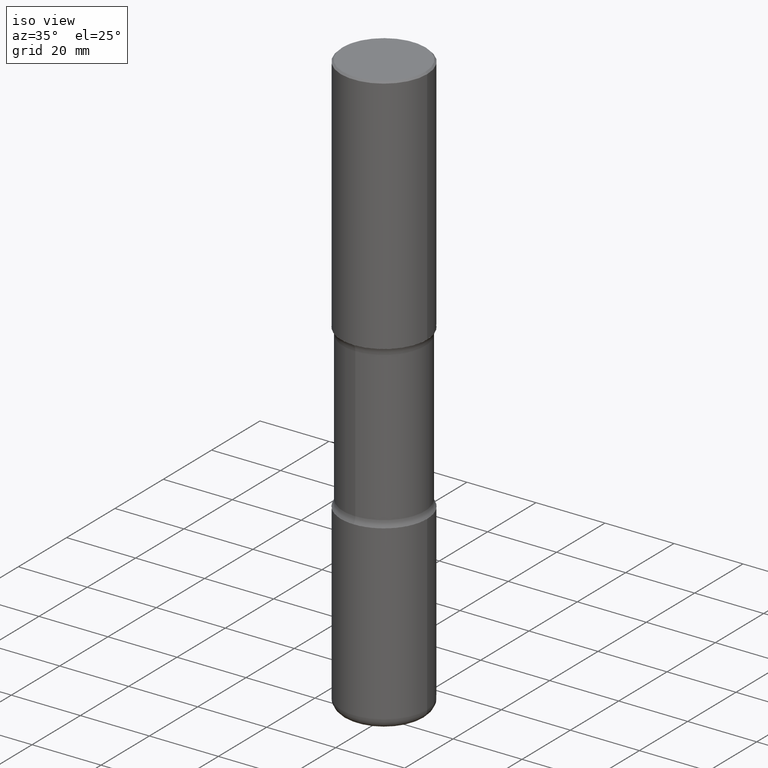
[diagram: clean part render]
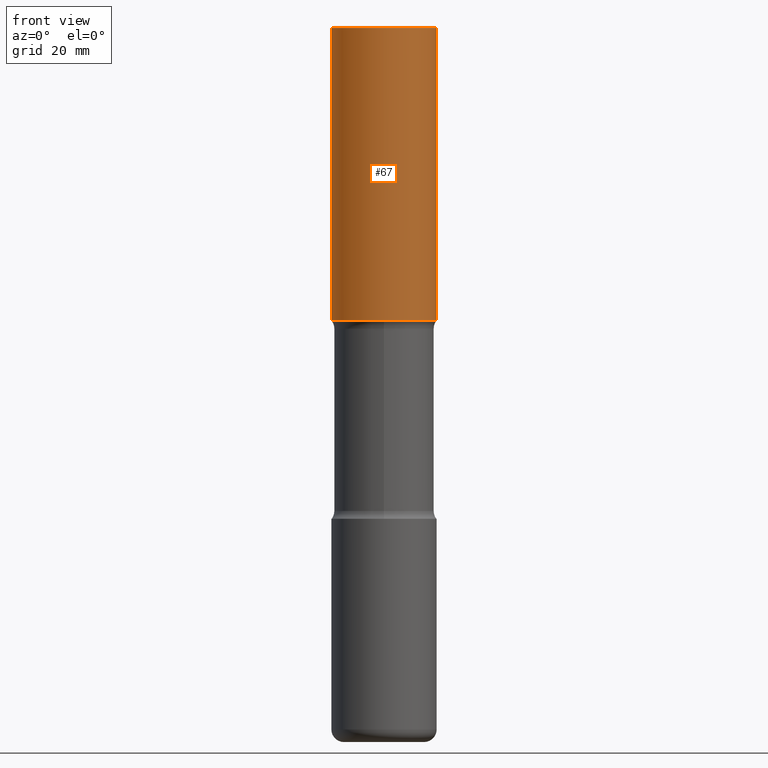
[diagram: tour spotlight — one face highlighted and labeled with its STEP entity id]
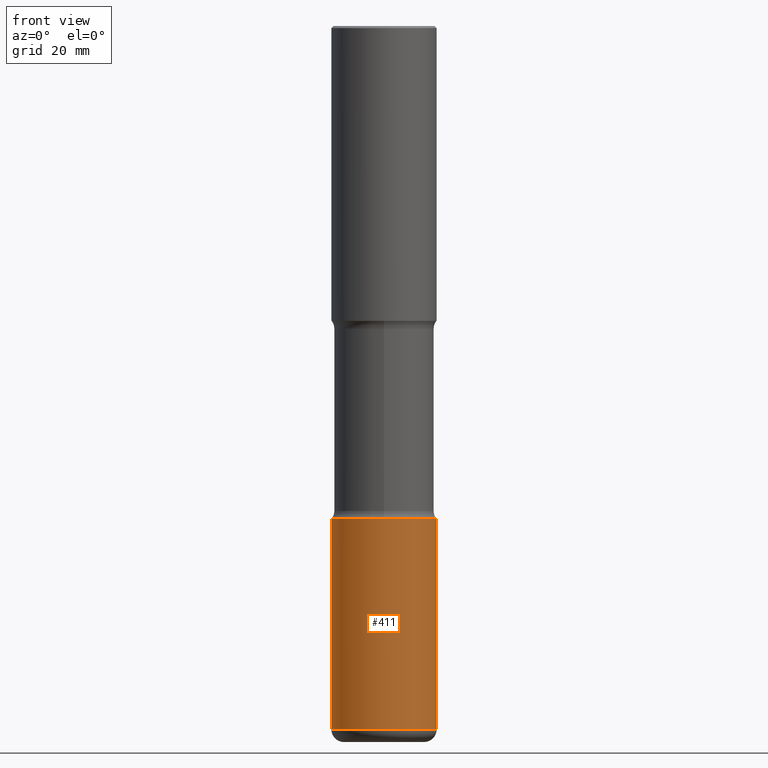
[diagram: tour spotlight — one face highlighted and labeled with its STEP entity id]
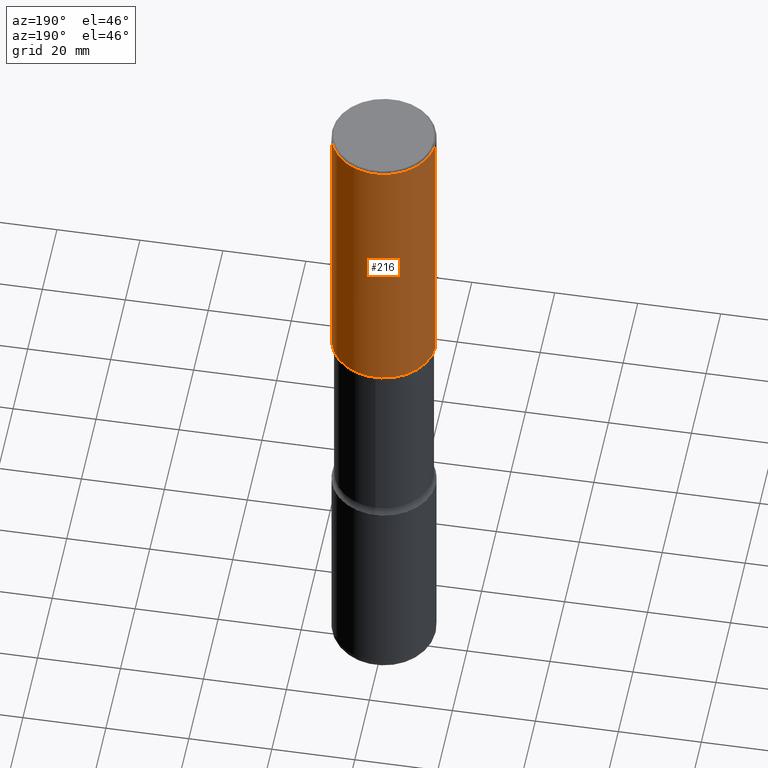
[diagram: tour spotlight — one face highlighted and labeled with its STEP entity id]
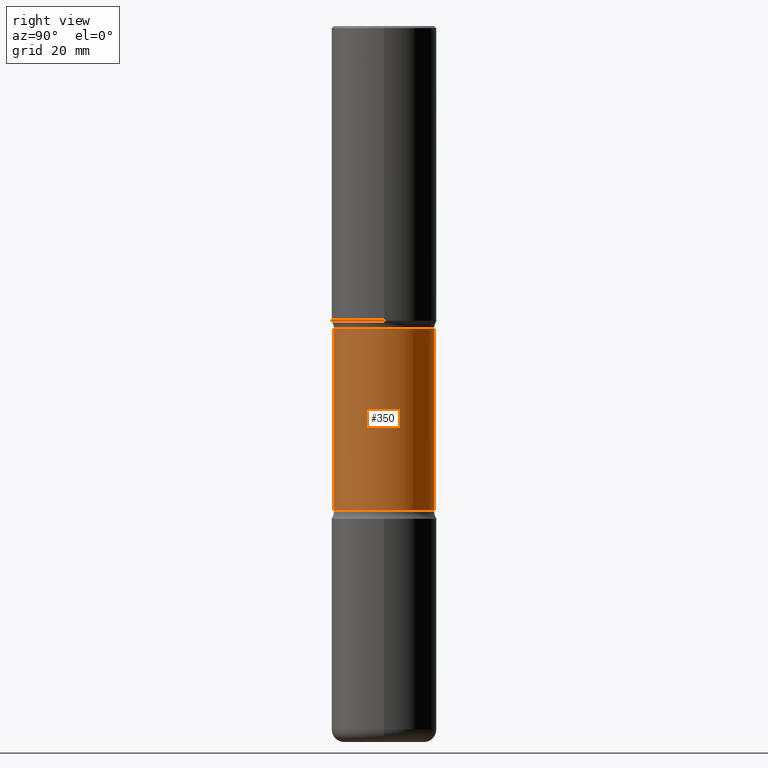
[diagram: tour spotlight — one face highlighted and labeled with its STEP entity id]
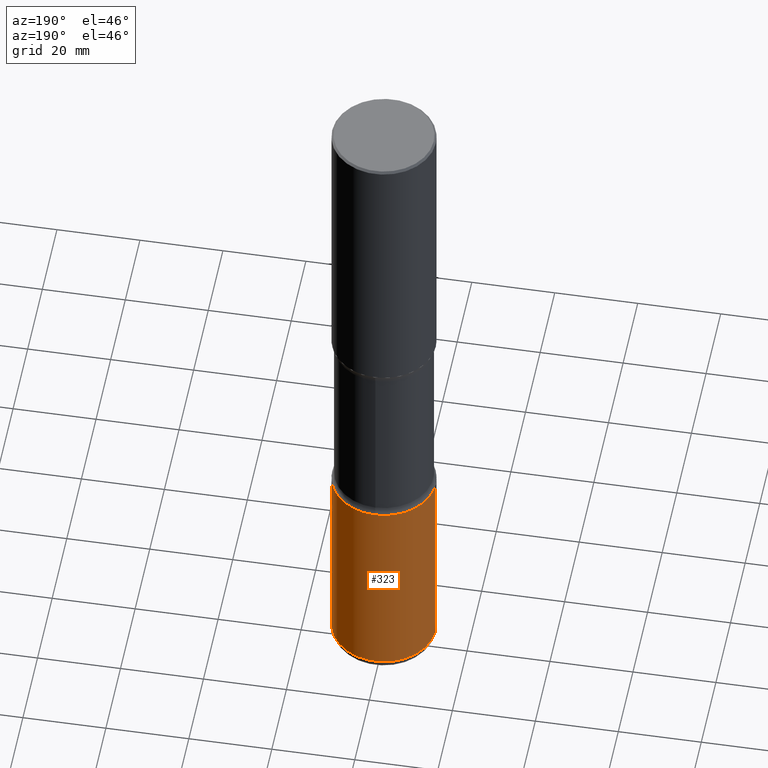
[diagram: tour spotlight — one face highlighted and labeled with its STEP entity id]
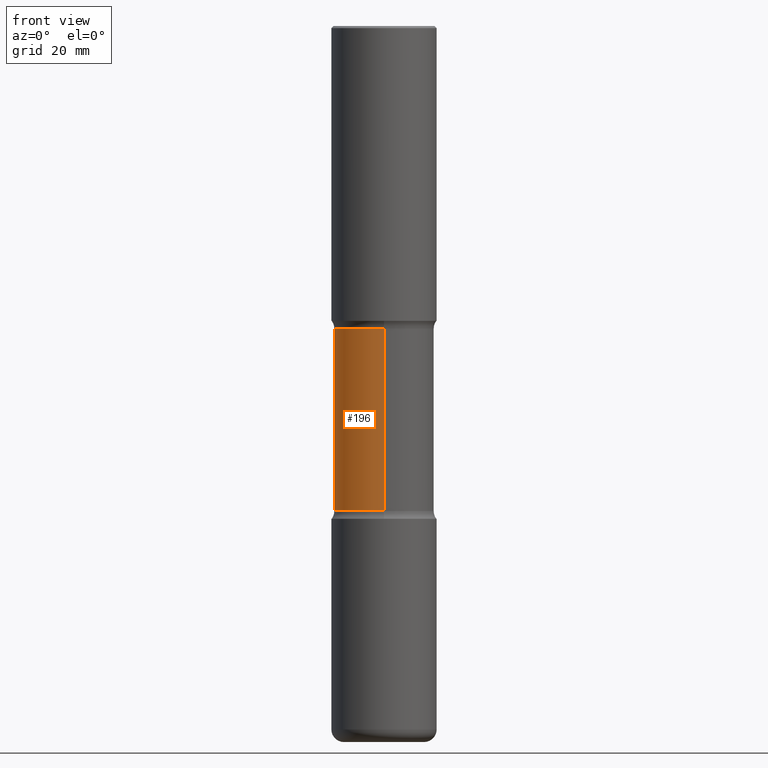
[diagram: tour spotlight — one face highlighted and labeled with its STEP entity id]
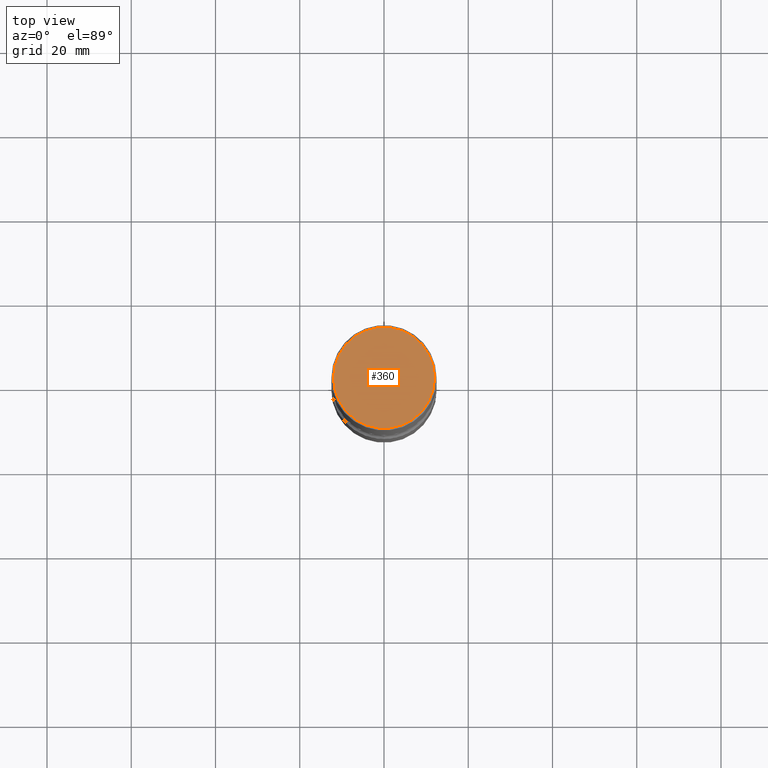
[diagram: tour spotlight — one face highlighted and labeled with its STEP entity id]
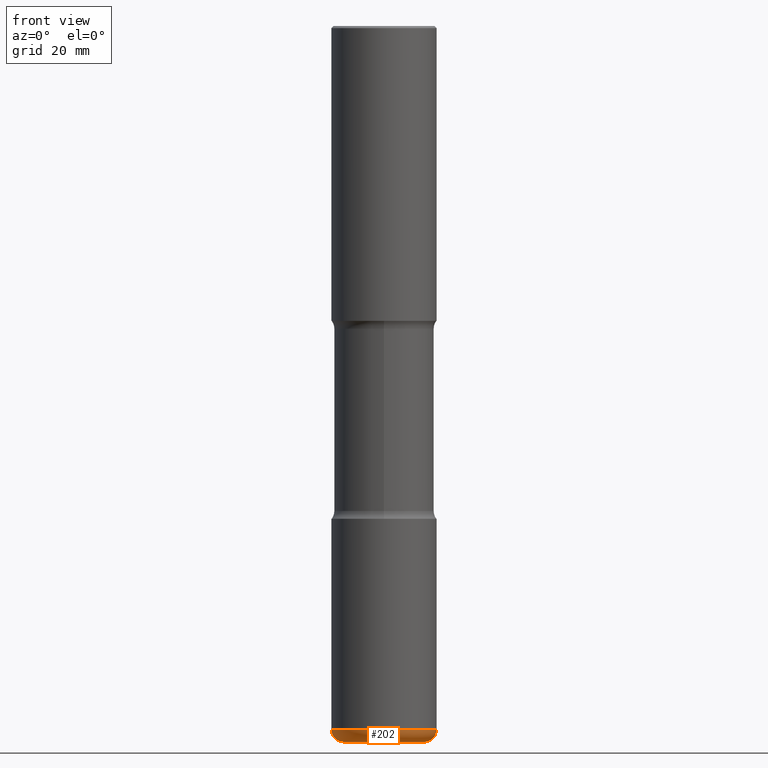
[diagram: tour spotlight — one face highlighted and labeled with its STEP entity id]
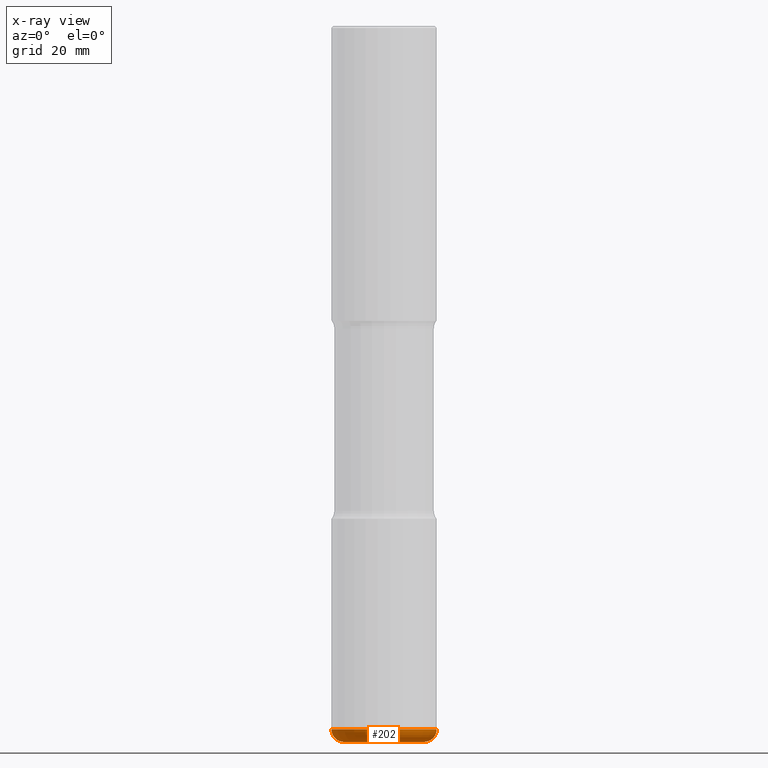
[diagram: x-ray of the same camera — body ghosted, this tour face saturated]
A machine part: a face-by-face anatomy tour. The part has 20 B-rep faces; the first image is the clean iso view, then the 8 largest visible faces are spotlighted one at a time (largest first), each with its STEP entity span.

Face 1 — front view, entity #67. In plain terms, the highlighted cylindrical surface (partial cylindrical patch) has radius 12.5006 mm, axis along (-0, 0, 1).
Definition (entity closure, byte-faithful):
#1 = EDGE_CURVE ( 'NONE', #19, #558, #187, .T. ) ;
#13 = DIRECTION ( 'NONE',  ( -2.445468806185136597E-29, 3.491481338843145583E-15, 1.000000000000000000 ) ) ;
#19 = VERTEX_POINT ( 'NONE', #438 ) ;
#21 = LINE ( 'NONE', #233, #417 ) ;
#22 = LINE ( 'NONE', #194, #309 ) ;
#30 = DIRECTION ( 'NONE',  ( 1.000000000000000000, -6.982962677686266711E-15, 0.000000000000000000 ) ) ;
#38 = CARTESIAN_POINT ( 'NONE',  ( 0.4921500000000002539, -1.305883850354111701E-14, -2.755899999999998240 ) ) ;
#54 = CIRCLE ( 'NONE', #494, 0.4921500000000002539 ) ;
#57 = ORIENTED_EDGE ( 'NONE', *, *, #160, .T. ) ;
#67 = ADVANCED_FACE ( 'NONE', ( #542 ), #242, .T. ) ;
#70 = AXIS2_PLACEMENT_3D ( 'NONE', #201, #115, #283 ) ;
#110 = EDGE_CURVE ( 'NONE', #469, #19, #21, .T. ) ;
#112 = CARTESIAN_POINT ( 'NONE',  ( 0.4921499999999999209, -3.446223716380121955E-15, -0.02000000000000006981 ) ) ;
#115 = DIRECTION ( 'NONE',  ( -2.445468806185136597E-29, 3.491481338843145583E-15, 1.000000000000000000 ) ) ;
#153 = DIRECTION ( 'NONE',  ( -2.445468806185136877E-29, 3.491481338843145188E-15, 1.000000000000000000 ) ) ;
#160 = EDGE_CURVE ( 'NONE', #469, #215, #54, .T. ) ;
#165 = AXIS2_PLACEMENT_3D ( 'NONE', #190, #13, #358 ) ;
#187 = CIRCLE ( 'NONE', #165, 0.4921499999999999209 ) ;
#190 = CARTESIAN_POINT ( 'NONE',  ( 4.890937612370289799E-31, -6.982962677686315028E-17, -0.02000000000000006981 ) ) ;
#194 = CARTESIAN_POINT ( 'NONE',  ( 0.4921500000000000874, -3.436665081823296565E-15, 2.399810400207970163E-29 ) ) ;
#198 = DIRECTION ( 'NONE',  ( -2.445468806185136877E-29, 3.491481338843145188E-15, 1.000000000000000000 ) ) ;
#201 = CARTESIAN_POINT ( 'NONE',  ( 0.000000000000000000, 0.000000000000000000, 0.000000000000000000 ) ) ;
#215 = VERTEX_POINT ( 'NONE', #38 ) ;
#233 = CARTESIAN_POINT ( 'NONE',  ( -0.4921500000000000874, 3.496936074043333686E-15, -2.420853904668952350E-29 ) ) ;
#242 = CYLINDRICAL_SURFACE ( 'NONE', #70, 0.4921500000000000874 ) ;
#278 = CARTESIAN_POINT ( 'NONE',  ( 6.739467482965614869E-29, -9.622173421717819657E-15, -2.755899999999998240 ) ) ;
#283 = DIRECTION ( 'NONE',  ( 1.000000000000000000, -6.982962677686265922E-15, 4.876176775795935793E-29 ) ) ;
#309 = VECTOR ( 'NONE', #198, 39.37007874015748143 ) ;
#310 = CARTESIAN_POINT ( 'NONE',  ( -0.4921500000000002539, -1.349065450204005425E-15, -2.755899999999998240 ) ) ;
#334 = ORIENTED_EDGE ( 'NONE', *, *, #1, .F. ) ;
#336 = EDGE_LOOP ( 'NONE', ( #521, #57, #533, #334 ) ) ;
#358 = DIRECTION ( 'NONE',  ( 1.000000000000000000, -6.982962677686265922E-15, 0.000000000000000000 ) ) ;
#417 = VECTOR ( 'NONE', #153, 39.37007874015748143 ) ;
#438 = CARTESIAN_POINT ( 'NONE',  ( -0.4921499999999999209, 3.366835455046432084E-15, -0.02000000000000006981 ) ) ;
#453 = DIRECTION ( 'NONE',  ( -2.445468806185136597E-29, 3.491481338843145583E-15, 1.000000000000000000 ) ) ;
#469 = VERTEX_POINT ( 'NONE', #310 ) ;
#494 = AXIS2_PLACEMENT_3D ( 'NONE', #278, #453, #30 ) ;
#521 = ORIENTED_EDGE ( 'NONE', *, *, #110, .F. ) ;
#533 = ORIENTED_EDGE ( 'NONE', *, *, #545, .T. ) ;
#542 = FACE_OUTER_BOUND ( 'NONE', #336, .T. ) ;
#545 = EDGE_CURVE ( 'NONE', #215, #558, #22, .T. ) ;
#558 = VERTEX_POINT ( 'NONE', #112 ) ;

Face 2 — front view, entity #411. In plain terms, the highlighted cylindrical surface (partial cylindrical patch) has radius 12.5006 mm, axis along (-0, 0, 1).
Definition (entity closure, byte-faithful):
#7 = AXIS2_PLACEMENT_3D ( 'NONE', #258, #58, #434 ) ;
#12 = DIRECTION ( 'NONE',  ( 1.000000000000000000, -6.982962677686266711E-15, 4.876176775795935793E-29 ) ) ;
#18 = CARTESIAN_POINT ( 'NONE',  ( -0.4921500000000002539, -1.602236492482621413E-14, -4.606299999999999173 ) ) ;
#32 = AXIS2_PLACEMENT_3D ( 'NONE', #56, #532, #406 ) ;
#56 = CARTESIAN_POINT ( 'NONE',  ( 1.126456296193059450E-28, -1.608281049111318039E-14, -4.606299999999999173 ) ) ;
#58 = DIRECTION ( 'NONE',  ( -2.445468806185136597E-29, 3.491481338843145583E-15, 1.000000000000000000 ) ) ;
#60 = DIRECTION ( 'NONE',  ( -2.445468806185136597E-29, 3.491481338843145583E-15, 1.000000000000000000 ) ) ;
#71 = CIRCLE ( 'NONE', #32, 0.4921500000000002539 ) ;
#122 = EDGE_LOOP ( 'NONE', ( #393, #270, #137, #227 ) ) ;
#128 = AXIS2_PLACEMENT_3D ( 'NONE', #138, #60, #12 ) ;
#137 = ORIENTED_EDGE ( 'NONE', *, *, #425, .T. ) ;
#138 = CARTESIAN_POINT ( 'NONE',  ( 0.000000000000000000, 0.000000000000000000, 0.000000000000000000 ) ) ;
#142 = DIRECTION ( 'NONE',  ( -2.445468806185136877E-29, 3.491481338843145188E-15, 1.000000000000000000 ) ) ;
#146 = VERTEX_POINT ( 'NONE', #505 ) ;
#166 = VECTOR ( 'NONE', #142, 39.37007874015748143 ) ;
#209 = CIRCLE ( 'NONE', #7, 0.4921500000000005315 ) ;
#221 = LINE ( 'NONE', #348, #166 ) ;
#226 = DIRECTION ( 'NONE',  ( -2.445468806185136877E-29, 3.491481338843145188E-15, 1.000000000000000000 ) ) ;
#227 = ORIENTED_EDGE ( 'NONE', *, *, #433, .F. ) ;
#258 = CARTESIAN_POINT ( 'NONE',  ( 1.607846830690603690E-28, -2.295579150662591841E-14, -6.574800000000001532 ) ) ;
#264 = LINE ( 'NONE', #440, #522 ) ;
#270 = ORIENTED_EDGE ( 'NONE', *, *, #367, .T. ) ;
#300 = VERTEX_POINT ( 'NONE', #423 ) ;
#348 = CARTESIAN_POINT ( 'NONE',  ( -0.4921500000000003650, 3.496936074043335658E-15, -2.420853904668953751E-29 ) ) ;
#357 = FACE_OUTER_BOUND ( 'NONE', #122, .T. ) ;
#367 = EDGE_CURVE ( 'NONE', #431, #146, #209, .T. ) ;
#393 = ORIENTED_EDGE ( 'NONE', *, *, #490, .F. ) ;
#406 = DIRECTION ( 'NONE',  ( 1.000000000000000000, -6.982962677686270655E-15, 0.000000000000000000 ) ) ;
#411 = ADVANCED_FACE ( 'NONE', ( #357 ), #534, .T. ) ;
#423 = CARTESIAN_POINT ( 'NONE',  ( 0.4921500000000002539, -1.951947557293647774E-14, -4.606299999999999173 ) ) ;
#425 = EDGE_CURVE ( 'NONE', #146, #300, #264, .T. ) ;
#431 = VERTEX_POINT ( 'NONE', #489 ) ;
#433 = EDGE_CURVE ( 'NONE', #446, #300, #71, .T. ) ;
#434 = DIRECTION ( 'NONE',  ( 1.000000000000000000, -6.982962677686266711E-15, 0.000000000000000000 ) ) ;
#440 = CARTESIAN_POINT ( 'NONE',  ( 0.4921500000000003650, -3.436665081823298538E-15, 2.399810400207971564E-29 ) ) ;
#446 = VERTEX_POINT ( 'NONE', #18 ) ;
#489 = CARTESIAN_POINT ( 'NONE',  ( -0.4921500000000005315, -1.945885543258258157E-14, -6.574800000000001532 ) ) ;
#490 = EDGE_CURVE ( 'NONE', #431, #446, #221, .T. ) ;
#505 = CARTESIAN_POINT ( 'NONE',  ( 0.4921500000000005315, -2.639245658844921892E-14, -6.574800000000001532 ) ) ;
#522 = VECTOR ( 'NONE', #226, 39.37007874015748143 ) ;
#532 = DIRECTION ( 'NONE',  ( -2.445468806185136597E-29, 3.491481338843145583E-15, 1.000000000000000000 ) ) ;
#534 = CYLINDRICAL_SURFACE ( 'NONE', #128, 0.4921500000000003650 ) ;

Face 3 — auxiliary view, entity #216. In plain terms, the highlighted cylindrical surface (partial cylindrical patch) has radius 12.5006 mm, axis along (-0, 0, 1).
Definition (entity closure, byte-faithful):
#11 = EDGE_CURVE ( 'NONE', #558, #19, #62, .T. ) ;
#15 = ORIENTED_EDGE ( 'NONE', *, *, #545, .F. ) ;
#19 = VERTEX_POINT ( 'NONE', #438 ) ;
#21 = LINE ( 'NONE', #233, #417 ) ;
#22 = LINE ( 'NONE', #194, #309 ) ;
#38 = CARTESIAN_POINT ( 'NONE',  ( 0.4921500000000002539, -1.305883850354111701E-14, -2.755899999999998240 ) ) ;
#62 = CIRCLE ( 'NONE', #481, 0.4921499999999999209 ) ;
#73 = DIRECTION ( 'NONE',  ( -2.445468806185136597E-29, 3.491481338843145583E-15, 1.000000000000000000 ) ) ;
#94 = DIRECTION ( 'NONE',  ( -2.445468806185136597E-29, 3.491481338843145583E-15, 1.000000000000000000 ) ) ;
#110 = EDGE_CURVE ( 'NONE', #469, #19, #21, .T. ) ;
#112 = CARTESIAN_POINT ( 'NONE',  ( 0.4921499999999999209, -3.446223716380121955E-15, -0.02000000000000006981 ) ) ;
#153 = DIRECTION ( 'NONE',  ( -2.445468806185136877E-29, 3.491481338843145188E-15, 1.000000000000000000 ) ) ;
#170 = FACE_OUTER_BOUND ( 'NONE', #315, .T. ) ;
#193 = ORIENTED_EDGE ( 'NONE', *, *, #11, .F. ) ;
#194 = CARTESIAN_POINT ( 'NONE',  ( 0.4921500000000000874, -3.436665081823296565E-15, 2.399810400207970163E-29 ) ) ;
#198 = DIRECTION ( 'NONE',  ( -2.445468806185136877E-29, 3.491481338843145188E-15, 1.000000000000000000 ) ) ;
#215 = VERTEX_POINT ( 'NONE', #38 ) ;
#216 = ADVANCED_FACE ( 'NONE', ( #170 ), #517, .T. ) ;
#233 = CARTESIAN_POINT ( 'NONE',  ( -0.4921500000000000874, 3.496936074043333686E-15, -2.420853904668952350E-29 ) ) ;
#261 = DIRECTION ( 'NONE',  ( 1.000000000000000000, -6.982962677686265922E-15, 0.000000000000000000 ) ) ;
#292 = DIRECTION ( 'NONE',  ( 1.000000000000000000, -6.982962677686265922E-15, 4.876176775795935793E-29 ) ) ;
#303 = CARTESIAN_POINT ( 'NONE',  ( 4.890937612370289799E-31, -6.982962677686315028E-17, -0.02000000000000006981 ) ) ;
#309 = VECTOR ( 'NONE', #198, 39.37007874015748143 ) ;
#310 = CARTESIAN_POINT ( 'NONE',  ( -0.4921500000000002539, -1.349065450204005425E-15, -2.755899999999998240 ) ) ;
#315 = EDGE_LOOP ( 'NONE', ( #463, #424, #193, #15 ) ) ;
#326 = DIRECTION ( 'NONE',  ( 1.000000000000000000, -6.982962677686266711E-15, 0.000000000000000000 ) ) ;
#347 = CIRCLE ( 'NONE', #366, 0.4921500000000002539 ) ;
#366 = AXIS2_PLACEMENT_3D ( 'NONE', #544, #73, #326 ) ;
#384 = AXIS2_PLACEMENT_3D ( 'NONE', #468, #515, #292 ) ;
#417 = VECTOR ( 'NONE', #153, 39.37007874015748143 ) ;
#424 = ORIENTED_EDGE ( 'NONE', *, *, #110, .T. ) ;
#438 = CARTESIAN_POINT ( 'NONE',  ( -0.4921499999999999209, 3.366835455046432084E-15, -0.02000000000000006981 ) ) ;
#463 = ORIENTED_EDGE ( 'NONE', *, *, #528, .T. ) ;
#468 = CARTESIAN_POINT ( 'NONE',  ( 0.000000000000000000, 0.000000000000000000, 0.000000000000000000 ) ) ;
#469 = VERTEX_POINT ( 'NONE', #310 ) ;
#481 = AXIS2_PLACEMENT_3D ( 'NONE', #303, #94, #261 ) ;
#515 = DIRECTION ( 'NONE',  ( -2.445468806185136597E-29, 3.491481338843145583E-15, 1.000000000000000000 ) ) ;
#517 = CYLINDRICAL_SURFACE ( 'NONE', #384, 0.4921500000000000874 ) ;
#528 = EDGE_CURVE ( 'NONE', #215, #469, #347, .T. ) ;
#544 = CARTESIAN_POINT ( 'NONE',  ( 6.739467482965614869E-29, -9.622173421717819657E-15, -2.755899999999998240 ) ) ;
#545 = EDGE_CURVE ( 'NONE', #215, #558, #22, .T. ) ;
#558 = VERTEX_POINT ( 'NONE', #112 ) ;

Face 4 — right view, entity #350. In plain terms, the highlighted cylindrical surface (partial cylindrical patch) has radius 11.8745 mm, axis along (0, -0, -1).
Definition (entity closure, byte-faithful):
#2 = DIRECTION ( 'NONE',  ( 6.982962677686266711E-15, 1.000000000000000000, -3.506115072082477581E-15 ) ) ;
#24 = AXIS2_PLACEMENT_3D ( 'NONE', #167, #77, #36 ) ;
#36 = DIRECTION ( 'NONE',  ( 6.982962677686265922E-15, 1.000000000000000000, -2.337410048054985186E-15 ) ) ;
#46 = CARTESIAN_POINT ( 'NONE',  ( 3.264535051818492903E-15, 0.4674999999999766009, -6.692899999999999849 ) ) ;
#48 = CARTESIAN_POINT ( 'NONE',  ( -3.291838451780658393E-15, -0.4675000000000099076, -2.830431050576251106 ) ) ;
#59 = ORIENTED_EDGE ( 'NONE', *, *, #404, .T. ) ;
#69 = EDGE_CURVE ( 'NONE', #478, #386, #382, .T. ) ;
#77 = DIRECTION ( 'NONE',  ( 2.478950746902978790E-29, -3.443533294061476764E-15, -1.000000000000000000 ) ) ;
#79 = CARTESIAN_POINT ( 'NONE',  ( 1.107980415843712738E-28, -1.582616033701247086E-14, -4.531768949423746307 ) ) ;
#97 = ORIENTED_EDGE ( 'NONE', *, *, #69, .T. ) ;
#107 = CIRCLE ( 'NONE', #319, 0.4674999999999999156 ) ;
#119 = VECTOR ( 'NONE', #445, 39.37007874015748143 ) ;
#127 = EDGE_LOOP ( 'NONE', ( #97, #59, #476, #338 ) ) ;
#130 = VERTEX_POINT ( 'NONE', #238 ) ;
#156 = VECTOR ( 'NONE', #335, 39.37007874015748143 ) ;
#167 = CARTESIAN_POINT ( 'NONE',  ( 1.643714159041834644E-28, -2.326808706250185533E-14, -6.692899999999998961 ) ) ;
#179 = VERTEX_POINT ( 'NONE', #459 ) ;
#195 = DIRECTION ( 'NONE',  ( 6.982962677686266711E-15, 1.000000000000000000, -3.506115072082477581E-15 ) ) ;
#211 = LINE ( 'NONE', #46, #156 ) ;
#238 = CARTESIAN_POINT ( 'NONE',  ( -3.291838451780614217E-15, -0.4675000000000157918, -4.531768949423744530 ) ) ;
#239 = EDGE_CURVE ( 'NONE', #179, #130, #107, .T. ) ;
#246 = CYLINDRICAL_SURFACE ( 'NONE', #24, 0.4674999999999998601 ) ;
#269 = LINE ( 'NONE', #442, #119 ) ;
#281 = DIRECTION ( 'NONE',  ( 2.478950746902978790E-29, -3.443533294061476764E-15, -1.000000000000000000 ) ) ;
#286 = FACE_OUTER_BOUND ( 'NONE', #127, .T. ) ;
#294 = DIRECTION ( 'NONE',  ( 2.478950746902978790E-29, -3.443533294061476764E-15, -1.000000000000000000 ) ) ;
#296 = EDGE_CURVE ( 'NONE', #478, #179, #211, .T. ) ;
#319 = AXIS2_PLACEMENT_3D ( 'NONE', #79, #294, #2 ) ;
#335 = DIRECTION ( 'NONE',  ( 2.478950746902979070E-29, -3.443533294061476764E-15, -1.000000000000000000 ) ) ;
#338 = ORIENTED_EDGE ( 'NONE', *, *, #296, .F. ) ;
#350 = ADVANCED_FACE ( 'NONE', ( #286 ), #246, .T. ) ;
#373 = CARTESIAN_POINT ( 'NONE',  ( 6.862271303354788236E-29, -9.967546637882530720E-15, -2.830431050576252883 ) ) ;
#382 = CIRCLE ( 'NONE', #502, 0.4674999999999999156 ) ;
#386 = VERTEX_POINT ( 'NONE', #48 ) ;
#401 = CARTESIAN_POINT ( 'NONE',  ( 3.264535051818397450E-15, 0.4674999999999899791, -2.830431050576254215 ) ) ;
#404 = EDGE_CURVE ( 'NONE', #386, #130, #269, .T. ) ;
#442 = CARTESIAN_POINT ( 'NONE',  ( -3.207282813958025392E-15, -0.4675000000000231748, -6.692899999999998073 ) ) ;
#445 = DIRECTION ( 'NONE',  ( 2.478950746902979070E-29, -3.443533294061476764E-15, -1.000000000000000000 ) ) ;
#459 = CARTESIAN_POINT ( 'NONE',  ( 3.264535051818439654E-15, 0.4674999999999840949, -4.531768949423748083 ) ) ;
#476 = ORIENTED_EDGE ( 'NONE', *, *, #239, .F. ) ;
#478 = VERTEX_POINT ( 'NONE', #401 ) ;
#502 = AXIS2_PLACEMENT_3D ( 'NONE', #373, #281, #195 ) ;

Face 5 — auxiliary view, entity #323. In plain terms, the highlighted cylindrical surface (partial cylindrical patch) has radius 12.5006 mm, axis along (-0, 0, 1).
Definition (entity closure, byte-faithful):
#9 = CARTESIAN_POINT ( 'NONE',  ( 1.126456296193059450E-28, -1.608281049111318039E-14, -4.606299999999999173 ) ) ;
#18 = CARTESIAN_POINT ( 'NONE',  ( -0.4921500000000002539, -1.602236492482621413E-14, -4.606299999999999173 ) ) ;
#49 = ORIENTED_EDGE ( 'NONE', *, *, #490, .T. ) ;
#61 = ORIENTED_EDGE ( 'NONE', *, *, #149, .T. ) ;
#78 = EDGE_LOOP ( 'NONE', ( #61, #49, #259, #342 ) ) ;
#86 = AXIS2_PLACEMENT_3D ( 'NONE', #327, #410, #497 ) ;
#142 = DIRECTION ( 'NONE',  ( -2.445468806185136877E-29, 3.491481338843145188E-15, 1.000000000000000000 ) ) ;
#146 = VERTEX_POINT ( 'NONE', #505 ) ;
#149 = EDGE_CURVE ( 'NONE', #146, #431, #297, .T. ) ;
#166 = VECTOR ( 'NONE', #142, 39.37007874015748143 ) ;
#174 = CARTESIAN_POINT ( 'NONE',  ( 0.000000000000000000, 0.000000000000000000, 0.000000000000000000 ) ) ;
#180 = DIRECTION ( 'NONE',  ( 1.000000000000000000, -6.982962677686270655E-15, 0.000000000000000000 ) ) ;
#204 = FACE_OUTER_BOUND ( 'NONE', #78, .T. ) ;
#207 = DIRECTION ( 'NONE',  ( 1.000000000000000000, -6.982962677686266711E-15, 4.876176775795935793E-29 ) ) ;
#221 = LINE ( 'NONE', #348, #166 ) ;
#226 = DIRECTION ( 'NONE',  ( -2.445468806185136877E-29, 3.491481338843145188E-15, 1.000000000000000000 ) ) ;
#254 = CYLINDRICAL_SURFACE ( 'NONE', #547, 0.4921500000000003650 ) ;
#259 = ORIENTED_EDGE ( 'NONE', *, *, #444, .F. ) ;
#264 = LINE ( 'NONE', #440, #522 ) ;
#297 = CIRCLE ( 'NONE', #86, 0.4921500000000005315 ) ;
#300 = VERTEX_POINT ( 'NONE', #423 ) ;
#314 = DIRECTION ( 'NONE',  ( -2.445468806185136597E-29, 3.491481338843145583E-15, 1.000000000000000000 ) ) ;
#323 = ADVANCED_FACE ( 'NONE', ( #204 ), #254, .T. ) ;
#327 = CARTESIAN_POINT ( 'NONE',  ( 1.607846830690603690E-28, -2.295579150662591841E-14, -6.574800000000001532 ) ) ;
#342 = ORIENTED_EDGE ( 'NONE', *, *, #425, .F. ) ;
#346 = CIRCLE ( 'NONE', #539, 0.4921500000000002539 ) ;
#348 = CARTESIAN_POINT ( 'NONE',  ( -0.4921500000000003650, 3.496936074043335658E-15, -2.420853904668953751E-29 ) ) ;
#410 = DIRECTION ( 'NONE',  ( -2.445468806185136597E-29, 3.491481338843145583E-15, 1.000000000000000000 ) ) ;
#423 = CARTESIAN_POINT ( 'NONE',  ( 0.4921500000000002539, -1.951947557293647774E-14, -4.606299999999999173 ) ) ;
#425 = EDGE_CURVE ( 'NONE', #146, #300, #264, .T. ) ;
#431 = VERTEX_POINT ( 'NONE', #489 ) ;
#440 = CARTESIAN_POINT ( 'NONE',  ( 0.4921500000000003650, -3.436665081823298538E-15, 2.399810400207971564E-29 ) ) ;
#444 = EDGE_CURVE ( 'NONE', #300, #446, #346, .T. ) ;
#446 = VERTEX_POINT ( 'NONE', #18 ) ;
#489 = CARTESIAN_POINT ( 'NONE',  ( -0.4921500000000005315, -1.945885543258258157E-14, -6.574800000000001532 ) ) ;
#490 = EDGE_CURVE ( 'NONE', #431, #446, #221, .T. ) ;
#497 = DIRECTION ( 'NONE',  ( 1.000000000000000000, -6.982962677686266711E-15, 0.000000000000000000 ) ) ;
#505 = CARTESIAN_POINT ( 'NONE',  ( 0.4921500000000005315, -2.639245658844921892E-14, -6.574800000000001532 ) ) ;
#519 = DIRECTION ( 'NONE',  ( -2.445468806185136597E-29, 3.491481338843145583E-15, 1.000000000000000000 ) ) ;
#522 = VECTOR ( 'NONE', #226, 39.37007874015748143 ) ;
#539 = AXIS2_PLACEMENT_3D ( 'NONE', #9, #314, #180 ) ;
#547 = AXIS2_PLACEMENT_3D ( 'NONE', #174, #519, #207 ) ;

Face 6 — front view, entity #196. In plain terms, the highlighted cylindrical surface (partial cylindrical patch) has radius 11.8745 mm, axis along (0, -0, -1).
Definition (entity closure, byte-faithful):
#46 = CARTESIAN_POINT ( 'NONE',  ( 3.264535051818492903E-15, 0.4674999999999766009, -6.692899999999999849 ) ) ;
#48 = CARTESIAN_POINT ( 'NONE',  ( -3.291838451780658393E-15, -0.4675000000000099076, -2.830431050576251106 ) ) ;
#68 = FACE_OUTER_BOUND ( 'NONE', #306, .T. ) ;
#89 = ORIENTED_EDGE ( 'NONE', *, *, #404, .F. ) ;
#114 = AXIS2_PLACEMENT_3D ( 'NONE', #381, #250, #344 ) ;
#119 = VECTOR ( 'NONE', #445, 39.37007874015748143 ) ;
#126 = DIRECTION ( 'NONE',  ( 6.982962677686265922E-15, 1.000000000000000000, -2.337410048054985186E-15 ) ) ;
#130 = VERTEX_POINT ( 'NONE', #238 ) ;
#143 = EDGE_CURVE ( 'NONE', #386, #478, #317, .T. ) ;
#147 = DIRECTION ( 'NONE',  ( 6.982962677686266711E-15, 1.000000000000000000, -3.506115072082477581E-15 ) ) ;
#156 = VECTOR ( 'NONE', #335, 39.37007874015748143 ) ;
#179 = VERTEX_POINT ( 'NONE', #459 ) ;
#196 = ADVANCED_FACE ( 'NONE', ( #68 ), #235, .T. ) ;
#197 = AXIS2_PLACEMENT_3D ( 'NONE', #199, #371, #126 ) ;
#199 = CARTESIAN_POINT ( 'NONE',  ( 1.643714159041834644E-28, -2.326808706250185533E-14, -6.692899999999998961 ) ) ;
#211 = LINE ( 'NONE', #46, #156 ) ;
#235 = CYLINDRICAL_SURFACE ( 'NONE', #197, 0.4674999999999998601 ) ;
#238 = CARTESIAN_POINT ( 'NONE',  ( -3.291838451780614217E-15, -0.4675000000000157918, -4.531768949423744530 ) ) ;
#250 = DIRECTION ( 'NONE',  ( 2.478950746902978790E-29, -3.443533294061476764E-15, -1.000000000000000000 ) ) ;
#269 = LINE ( 'NONE', #442, #119 ) ;
#271 = EDGE_CURVE ( 'NONE', #130, #179, #511, .T. ) ;
#296 = EDGE_CURVE ( 'NONE', #478, #179, #211, .T. ) ;
#306 = EDGE_LOOP ( 'NONE', ( #89, #488, #491, #480 ) ) ;
#317 = CIRCLE ( 'NONE', #460, 0.4674999999999999156 ) ;
#335 = DIRECTION ( 'NONE',  ( 2.478950746902979070E-29, -3.443533294061476764E-15, -1.000000000000000000 ) ) ;
#344 = DIRECTION ( 'NONE',  ( 6.982962677686266711E-15, 1.000000000000000000, -3.506115072082477581E-15 ) ) ;
#371 = DIRECTION ( 'NONE',  ( 2.478950746902978790E-29, -3.443533294061476764E-15, -1.000000000000000000 ) ) ;
#381 = CARTESIAN_POINT ( 'NONE',  ( 1.107980415843712738E-28, -1.582616033701247086E-14, -4.531768949423746307 ) ) ;
#386 = VERTEX_POINT ( 'NONE', #48 ) ;
#401 = CARTESIAN_POINT ( 'NONE',  ( 3.264535051818397450E-15, 0.4674999999999899791, -2.830431050576254215 ) ) ;
#404 = EDGE_CURVE ( 'NONE', #386, #130, #269, .T. ) ;
#442 = CARTESIAN_POINT ( 'NONE',  ( -3.207282813958025392E-15, -0.4675000000000231748, -6.692899999999998073 ) ) ;
#445 = DIRECTION ( 'NONE',  ( 2.478950746902979070E-29, -3.443533294061476764E-15, -1.000000000000000000 ) ) ;
#459 = CARTESIAN_POINT ( 'NONE',  ( 3.264535051818439654E-15, 0.4674999999999840949, -4.531768949423748083 ) ) ;
#460 = AXIS2_PLACEMENT_3D ( 'NONE', #538, #501, #147 ) ;
#478 = VERTEX_POINT ( 'NONE', #401 ) ;
#480 = ORIENTED_EDGE ( 'NONE', *, *, #271, .F. ) ;
#488 = ORIENTED_EDGE ( 'NONE', *, *, #143, .T. ) ;
#491 = ORIENTED_EDGE ( 'NONE', *, *, #296, .T. ) ;
#501 = DIRECTION ( 'NONE',  ( 2.478950746902978790E-29, -3.443533294061476764E-15, -1.000000000000000000 ) ) ;
#511 = CIRCLE ( 'NONE', #114, 0.4674999999999999156 ) ;
#538 = CARTESIAN_POINT ( 'NONE',  ( 6.862271303354788236E-29, -9.967546637882530720E-15, -2.830431050576252883 ) ) ;

Face 7 — top view, entity #360. In plain terms, the highlighted planar face has unit normal (0, -0, -1).
Definition (entity closure, byte-faithful):
#39 = ORIENTED_EDGE ( 'NONE', *, *, #123, .T. ) ;
#74 = CARTESIAN_POINT ( 'NONE',  ( -3.131554243005659264E-46, 4.471029511141341874E-32, 1.280553747030123384E-17 ) ) ;
#82 = CARTESIAN_POINT ( 'NONE',  ( -0.4721499999999998476, 3.331920641658000829E-15, 1.280553747027805488E-17 ) ) ;
#90 = VERTEX_POINT ( 'NONE', #413 ) ;
#95 = DIRECTION ( 'NONE',  ( 1.000000000000000000, -6.982962677686265922E-15, 4.876006802227160734E-29 ) ) ;
#123 = EDGE_CURVE ( 'NONE', #90, #249, #177, .T. ) ;
#162 = PLANE ( 'NONE',  #189 ) ;
#176 = ORIENTED_EDGE ( 'NONE', *, *, #390, .T. ) ;
#177 = CIRCLE ( 'NONE', #492, 0.4721499999999998476 ) ;
#189 = AXIS2_PLACEMENT_3D ( 'NONE', #512, #359, #397 ) ;
#205 = FACE_OUTER_BOUND ( 'NONE', #509, .T. ) ;
#249 = VERTEX_POINT ( 'NONE', #82 ) ;
#305 = CARTESIAN_POINT ( 'NONE',  ( -3.131554243005659264E-46, 4.471029511141341874E-32, 1.280553747030123384E-17 ) ) ;
#359 = DIRECTION ( 'NONE',  ( 2.438088387897960049E-29, -3.491481338843145188E-15, -1.000000000000000000 ) ) ;
#360 = ADVANCED_FACE ( 'NONE', ( #205 ), #162, .F. ) ;
#377 = AXIS2_PLACEMENT_3D ( 'NONE', #305, #479, #95 ) ;
#390 = EDGE_CURVE ( 'NONE', #249, #90, #462, .T. ) ;
#397 = DIRECTION ( 'NONE',  ( -1.000000000000000000, 6.982962677686265922E-15, -4.876176775795935793E-29 ) ) ;
#412 = DIRECTION ( 'NONE',  ( 1.000000000000000000, -6.982962677686265922E-15, 4.876006802227160734E-29 ) ) ;
#413 = CARTESIAN_POINT ( 'NONE',  ( 0.4721499999999998476, -3.342703923013974974E-15, 1.280553747032445131E-17 ) ) ;
#415 = DIRECTION ( 'NONE',  ( -2.445468806185136597E-29, 3.491481338843145583E-15, 1.000000000000000000 ) ) ;
#462 = CIRCLE ( 'NONE', #377, 0.4721499999999998476 ) ;
#479 = DIRECTION ( 'NONE',  ( -2.445468806185136597E-29, 3.491481338843145583E-15, 1.000000000000000000 ) ) ;
#492 = AXIS2_PLACEMENT_3D ( 'NONE', #74, #415, #412 ) ;
#509 = EDGE_LOOP ( 'NONE', ( #176, #39 ) ) ;
#512 = CARTESIAN_POINT ( 'NONE',  ( 3.297005828269569180E-15, 0.4721499999999998476, -1.642100145399640064E-15 ) ) ;

Face 8 — front view, entity #202. An x-ray twin of the same camera follows (body ghosted, this face saturated) — the face is partly hidden behind the body. In plain terms, the highlighted toroidal blend (fillet) surface has major radius 9.5009 mm and minor (blend) radius 2.9997 mm.
Definition (entity closure, byte-faithful):
#7 = AXIS2_PLACEMENT_3D ( 'NONE', #258, #58, #434 ) ;
#41 = AXIS2_PLACEMENT_3D ( 'NONE', #549, #331, #284 ) ;
#58 = DIRECTION ( 'NONE',  ( -2.445468806185136597E-29, 3.491481338843145583E-15, 1.000000000000000000 ) ) ;
#105 = ORIENTED_EDGE ( 'NONE', *, *, #367, .F. ) ;
#111 = DIRECTION ( 'NONE',  ( 7.105427357601001859E-15, 1.000000000000000000, -3.491481338843145583E-15 ) ) ;
#121 = DIRECTION ( 'NONE',  ( 1.000000000000000000, -6.982962677686266711E-15, 4.883557194083112901E-29 ) ) ;
#136 = CARTESIAN_POINT ( 'NONE',  ( 0.3740500000000004932, -2.598011264233184321E-14, -6.692900000000000738 ) ) ;
#146 = VERTEX_POINT ( 'NONE', #505 ) ;
#148 = CIRCLE ( 'NONE', #41, 0.1181000000000000383 ) ;
#175 = EDGE_CURVE ( 'NONE', #400, #146, #148, .T. ) ;
#183 = DIRECTION ( 'NONE',  ( -2.445468806185136597E-29, 3.491481338843145583E-15, 1.000000000000000000 ) ) ;
#186 = EDGE_CURVE ( 'NONE', #554, #431, #531, .T. ) ;
#202 = ADVANCED_FACE ( 'NONE', ( #430 ), #262, .T. ) ;
#209 = CIRCLE ( 'NONE', #7, 0.4921500000000005315 ) ;
#224 = ORIENTED_EDGE ( 'NONE', *, *, #186, .F. ) ;
#243 = CARTESIAN_POINT ( 'NONE',  ( -0.3740500000000004932, -2.029800640351526055E-14, -6.574800000000001532 ) ) ;
#247 = EDGE_LOOP ( 'NONE', ( #224, #274, #293, #105 ) ) ;
#253 = AXIS2_PLACEMENT_3D ( 'NONE', #421, #508, #121 ) ;
#258 = CARTESIAN_POINT ( 'NONE',  ( 1.607846830690603690E-28, -2.295579150662591841E-14, -6.574800000000001532 ) ) ;
#262 = TOROIDAL_SURFACE ( 'NONE', #253, 0.3740500000000004932, 0.1181000000000000383 ) ;
#274 = ORIENTED_EDGE ( 'NONE', *, *, #375, .T. ) ;
#282 = CIRCLE ( 'NONE', #337, 0.3740500000000004932 ) ;
#284 = DIRECTION ( 'NONE',  ( 1.000000000000000000, -6.982962677686270655E-15, 0.000000000000000000 ) ) ;
#293 = ORIENTED_EDGE ( 'NONE', *, *, #175, .T. ) ;
#331 = DIRECTION ( 'NONE',  ( -6.982962677686266711E-15, -1.000000000000000000, 3.491481338843145583E-15 ) ) ;
#337 = AXIS2_PLACEMENT_3D ( 'NONE', #399, #183, #487 ) ;
#367 = EDGE_CURVE ( 'NONE', #431, #146, #209, .T. ) ;
#375 = EDGE_CURVE ( 'NONE', #554, #400, #282, .T. ) ;
#399 = CARTESIAN_POINT ( 'NONE',  ( 1.636727817291650190E-28, -2.336813545274329412E-14, -6.692900000000000738 ) ) ;
#400 = VERTEX_POINT ( 'NONE', #136 ) ;
#421 = CARTESIAN_POINT ( 'NONE',  ( 1.607846830690603690E-28, -2.295579150662591841E-14, -6.574800000000001532 ) ) ;
#430 = FACE_OUTER_BOUND ( 'NONE', #247, .T. ) ;
#431 = VERTEX_POINT ( 'NONE', #489 ) ;
#434 = DIRECTION ( 'NONE',  ( 1.000000000000000000, -6.982962677686266711E-15, 0.000000000000000000 ) ) ;
#455 = DIRECTION ( 'NONE',  ( -1.000000000000000000, 7.105427357601001859E-15, 0.000000000000000000 ) ) ;
#487 = DIRECTION ( 'NONE',  ( 1.000000000000000000, -6.982962677686264344E-15, 0.000000000000000000 ) ) ;
#489 = CARTESIAN_POINT ( 'NONE',  ( -0.4921500000000005315, -1.945885543258258157E-14, -6.574800000000001532 ) ) ;
#496 = CARTESIAN_POINT ( 'NONE',  ( -0.3740500000000004932, -2.008460289110760576E-14, -6.692900000000000738 ) ) ;
#503 = AXIS2_PLACEMENT_3D ( 'NONE', #243, #111, #455 ) ;
#505 = CARTESIAN_POINT ( 'NONE',  ( 0.4921500000000005315, -2.639245658844921892E-14, -6.574800000000001532 ) ) ;
#508 = DIRECTION ( 'NONE',  ( -2.445468806185136597E-29, 3.491481338843145583E-15, 1.000000000000000000 ) ) ;
#531 = CIRCLE ( 'NONE', #503, 0.1181000000000000383 ) ;
#549 = CARTESIAN_POINT ( 'NONE',  ( 0.3740500000000004932, -2.556776869621447065E-14, -6.574800000000001532 ) ) ;
#554 = VERTEX_POINT ( 'NONE', #496 ) ;